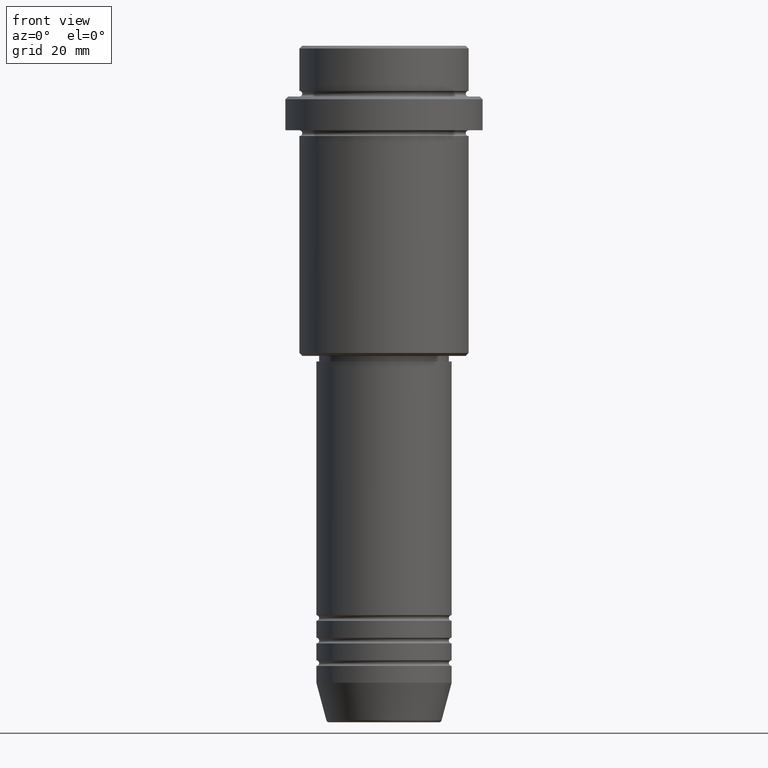
[diagram: clean part render]
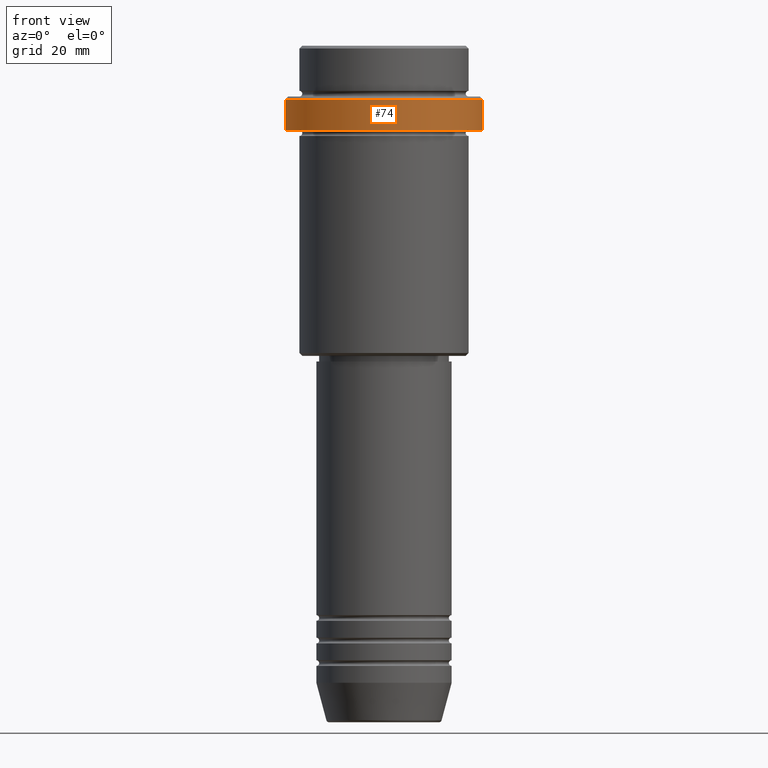
[diagram: same view with one face highlighted and labeled with its STEP entity id]
A machine part, front view. The second image highlights one B-rep face of the part: STEP entity #74.
In plain terms, the highlighted cylindrical surface (partial cylindrical patch) has radius 17.5 mm, axis along (-0, -0, 1).
Its self-contained STEP definition (entity closure, byte-faithful):
#74 = ADVANCED_FACE ( 'NONE', ( #124 ), #359, .T. ) ;
#117 = DIRECTION ( 'NONE',  ( -0.000000000000000000, -0.000000000000000000, 1.000000000000000000 ) ) ;
#124 = FACE_OUTER_BOUND ( 'NONE', #932, .T. ) ;
#325 = CIRCLE ( 'NONE', #602, 17.50000000000000000 ) ;
#343 = LINE ( 'NONE', #1310, #577 ) ;
#348 = DIRECTION ( 'NONE',  ( 1.000000000000000000, 0.000000000000000000, 0.000000000000000000 ) ) ;
#359 = CYLINDRICAL_SURFACE ( 'NONE', #533, 17.50000000000000000 ) ;
#374 = VECTOR ( 'NONE', #117, 1000.000000000000000 ) ;
#381 = DIRECTION ( 'NONE',  ( -0.000000000000000000, -0.000000000000000000, 1.000000000000000000 ) ) ;
#404 = ORIENTED_EDGE ( 'NONE', *, *, #875, .T. ) ;
#420 = CIRCLE ( 'NONE', #1111, 17.50000000000000000 ) ;
#451 = DIRECTION ( 'NONE',  ( 0.000000000000000000, 0.000000000000000000, -1.000000000000000000 ) ) ;
#533 = AXIS2_PLACEMENT_3D ( 'NONE', #812, #691, #729 ) ;
#577 = VECTOR ( 'NONE', #909, 1000.000000000000000 ) ;
#602 = AXIS2_PLACEMENT_3D ( 'NONE', #948, #381, #916 ) ;
#655 = LINE ( 'NONE', #679, #374 ) ;
#656 = CARTESIAN_POINT ( 'NONE',  ( 17.50000000000000000, 0.000000000000000000, -9.500000000000000000 ) ) ;
#679 = CARTESIAN_POINT ( 'NONE',  ( -17.50000000000000000, 2.143131898507868248E-15, 0.000000000000000000 ) ) ;
#691 = DIRECTION ( 'NONE',  ( -0.000000000000000000, -0.000000000000000000, 1.000000000000000000 ) ) ;
#704 = VERTEX_POINT ( 'NONE', #1119 ) ;
#705 = EDGE_CURVE ( 'NONE', #704, #813, #343, .T. ) ;
#729 = DIRECTION ( 'NONE',  ( 1.000000000000000000, 0.000000000000000000, 0.000000000000000000 ) ) ;
#812 = CARTESIAN_POINT ( 'NONE',  ( 0.000000000000000000, 0.000000000000000000, 0.000000000000000000 ) ) ;
#813 = VERTEX_POINT ( 'NONE', #656 ) ;
#871 = ORIENTED_EDGE ( 'NONE', *, *, #1013, .T. ) ;
#875 = EDGE_CURVE ( 'NONE', #813, #1330, #420, .T. ) ;
#882 = CARTESIAN_POINT ( 'NONE',  ( -17.50000000000000000, 2.143131898507868248E-15, -9.500000000000000000 ) ) ;
#909 = DIRECTION ( 'NONE',  ( -0.000000000000000000, -0.000000000000000000, 1.000000000000000000 ) ) ;
#916 = DIRECTION ( 'NONE',  ( 1.000000000000000000, 0.000000000000000000, 0.000000000000000000 ) ) ;
#932 = EDGE_LOOP ( 'NONE', ( #1301, #871, #1224, #404 ) ) ;
#948 = CARTESIAN_POINT ( 'NONE',  ( 0.000000000000000000, 0.000000000000000000, -15.00000000000000000 ) ) ;
#1013 = EDGE_CURVE ( 'NONE', #1079, #704, #325, .T. ) ;
#1079 = VERTEX_POINT ( 'NONE', #1319 ) ;
#1088 = EDGE_CURVE ( 'NONE', #1079, #1330, #655, .T. ) ;
#1111 = AXIS2_PLACEMENT_3D ( 'NONE', #1207, #451, #348 ) ;
#1119 = CARTESIAN_POINT ( 'NONE',  ( 17.50000000000000000, 0.000000000000000000, -15.00000000000000000 ) ) ;
#1207 = CARTESIAN_POINT ( 'NONE',  ( 0.000000000000000000, 0.000000000000000000, -9.500000000000000000 ) ) ;
#1224 = ORIENTED_EDGE ( 'NONE', *, *, #705, .T. ) ;
#1301 = ORIENTED_EDGE ( 'NONE', *, *, #1088, .F. ) ;
#1310 = CARTESIAN_POINT ( 'NONE',  ( 17.50000000000000000, 0.000000000000000000, 0.000000000000000000 ) ) ;
#1319 = CARTESIAN_POINT ( 'NONE',  ( -17.50000000000000000, 2.143131898507868248E-15, -15.00000000000000000 ) ) ;
#1330 = VERTEX_POINT ( 'NONE', #882 ) ;